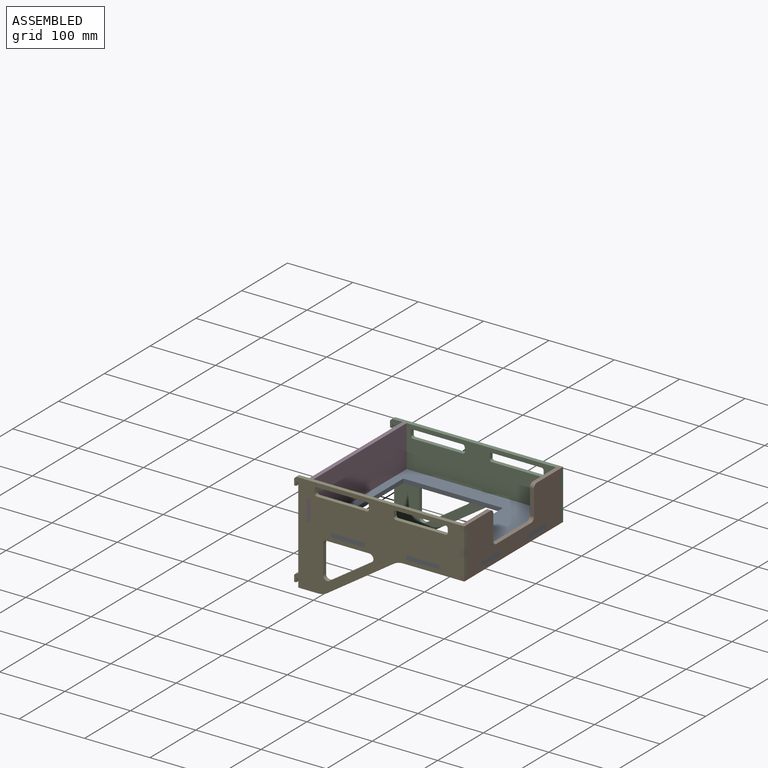
[diagram: assembled view]
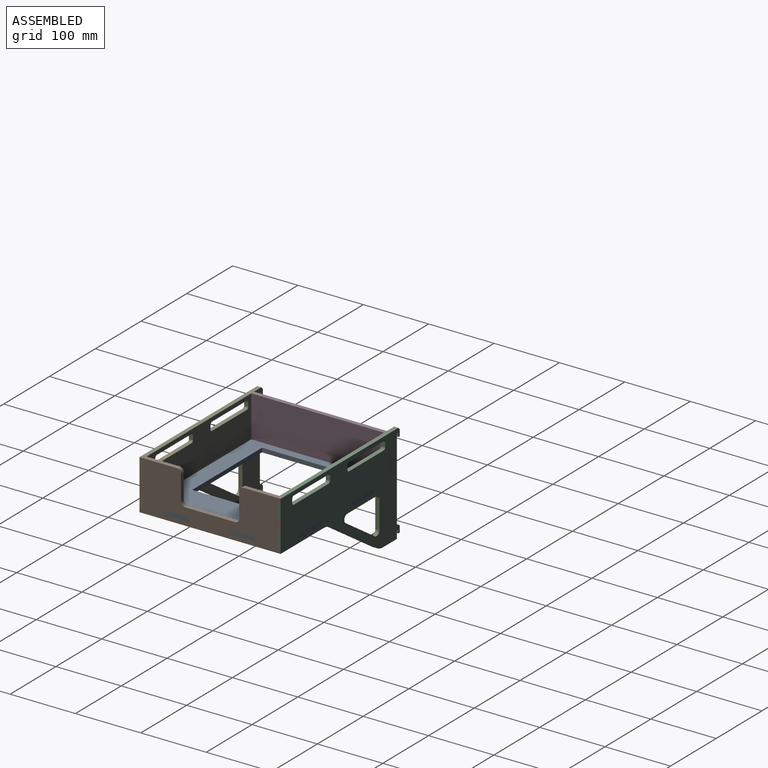
[diagram: assembled view, second angle]
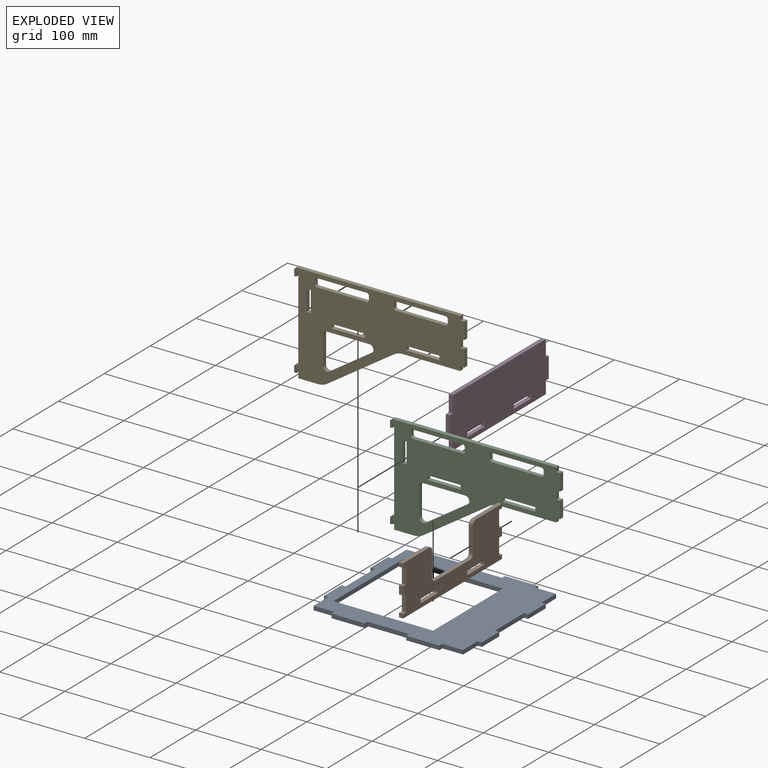
[diagram: exploded view]
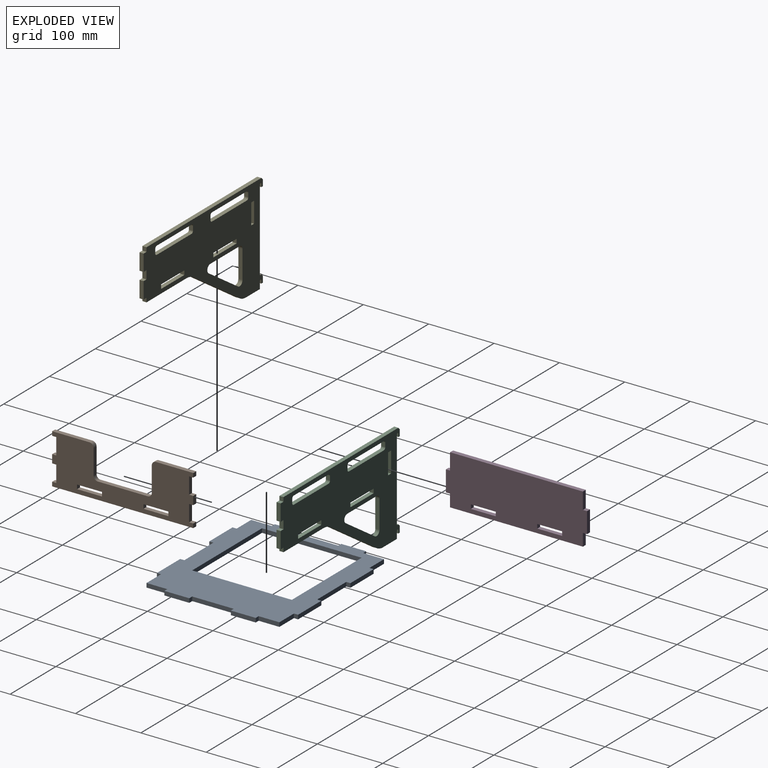
[diagram: exploded view, second angle]
ASSEMBLY  parts=5 mates=12
PART A: 42 faces, bbox 241.3x215.9x6.4 mm
  f0: plane 63.5x6.35mm, normal (0,-1,0), area 403.2mm2, adj f16,f17,f36,f39
  f1: plane 31.75x6.35mm, normal (0,-1,0), area 201.6mm2, adj f4,f16,f17,f38
  f2: plane 63.5x6.35mm, normal (-1,0,0), area 403.2mm2, adj f16,f17,f31,f35
  f3: plane 31.75x6.35mm, normal (-1,0,0), area 201.6mm2, adj f9,f16,f17,f30
  f4: plane 31.75x6.35mm, normal (1,0,0), area 201.6mm2, adj f1,f16,f17,f27
  f5: plane 63.5x6.35mm, normal (1,0,0), area 403.2mm2, adj f16,f17,f24,f29
  f6: plane 31.75x6.35mm, normal (0,1,0), area 201.6mm2, adj f10,f16,f17,f21
  f7: plane 63.5x6.35mm, normal (0,1,0), area 403.2mm2, adj f16,f17,f18,f23
  f8: plane 31.75x6.35mm, normal (-1,0,0), area 201.6mm2, adj f15,f16,f17,f33
  f9: plane 31.75x6.35mm, normal (0,-1,0), area 201.6mm2, adj f3,f16,f17,f40
  f10: plane 31.75x6.35mm, normal (1,0,0), area 201.6mm2, adj f6,f16,f17,f26
  f11: plane 152.4x6.35mm, normal (-1,0,0), area 967.7mm2, adj f12,f14,f16,f17
  f12: plane 152.4x6.35mm, normal (0,1,0), area 967.7mm2, adj f11,f13,f16,f17
  f13: plane 152.4x6.35mm, normal (1,0,0), area 967.7mm2, adj f12,f14,f16,f17
  f14: plane 152.4x6.35mm, normal (0,-1,0), area 967.7mm2, adj f11,f13,f16,f17
  f15: plane 31.75x6.35mm, normal (0,1,0), area 201.6mm2, adj f8,f16,f17,f20
  f16: plane 241.3x215.9mm, normal (0,0,1), area 25483.8mm2, adj f0,f1,f2,f3,f4,f5,f6,f7
  f17: plane 241.3x215.9mm, normal (0,0,-1), area 25483.8mm2, adj f0,f1,f2,f3,f4,f5,f6,f7
  f18: plane 6.35x6.35mm, normal (1,0,0), area 40.3mm2, adj f7,f16,f17,f19
  f19: plane 50.8x6.35mm, normal (0,1,0), area 322.6mm2, adj f16,f17,f18,f20
  f20: plane 6.35x6.35mm, normal (-1,0,0), area 40.3mm2, adj f15,f16,f17,f19
  f21: plane 6.35x6.35mm, normal (1,0,0), area 40.3mm2, adj f6,f16,f17,f22
  f22: plane 50.8x6.35mm, normal (0,1,0), area 322.6mm2, adj f16,f17,f21,f23
  f23: plane 6.35x6.35mm, normal (-1,0,0), area 40.3mm2, adj f7,f16,f17,f22
  f24: plane 6.35x6.35mm, normal (0,-1,0), area 40.3mm2, adj f5,f16,f17,f25
  f25: plane 38.1x6.35mm, normal (1,0,0), area 241.9mm2, adj f16,f17,f24,f26
  f26: plane 6.35x6.35mm, normal (0,1,0), area 40.3mm2, adj f10,f16,f17,f25
  f27: plane 6.35x6.35mm, normal (0,-1,0), area 40.3mm2, adj f4,f16,f17,f28
  f28: plane 38.1x6.35mm, normal (1,0,0), area 241.9mm2, adj f16,f17,f27,f29
  f29: plane 6.35x6.35mm, normal (0,1,0), area 40.3mm2, adj f5,f16,f17,f28
  f30: plane 6.35x6.35mm, normal (0,-1,0), area 40.3mm2, adj f3,f16,f17,f32
  f31: plane 6.35x6.35mm, normal (0,1,0), area 40.3mm2, adj f2,f16,f17,f32
  f32: plane 38.1x6.35mm, normal (-1,0,0), area 241.9mm2, adj f16,f17,f30,f31
  f33: plane 6.35x6.35mm, normal (0,1,0), area 40.3mm2, adj f8,f16,f17,f34
  f34: plane 38.1x6.35mm, normal (-1,0,0), area 241.9mm2, adj f16,f17,f33,f35
  f35: plane 6.35x6.35mm, normal (0,-1,0), area 40.3mm2, adj f2,f16,f17,f34
  f36: plane 6.35x6.35mm, normal (-1,0,0), area 40.3mm2, adj f0,f16,f17,f37
  f37: plane 50.8x6.35mm, normal (0,-1,0), area 322.6mm2, adj f16,f17,f36,f38
  f38: plane 6.35x6.35mm, normal (1,0,0), area 40.3mm2, adj f1,f16,f17,f37
  f39: plane 6.35x6.35mm, normal (1,0,0), area 40.3mm2, adj f0,f16,f17,f41
  f40: plane 6.35x6.35mm, normal (-1,0,0), area 40.3mm2, adj f9,f16,f17,f41
  f41: plane 50.8x6.35mm, normal (0,-1,0), area 322.6mm2, adj f16,f17,f39,f40
PART B: 38 faces, bbox 6.4x215.9x76.2 mm
  f0: plane 6.35x6.35mm, normal (0,1,0), area 40.3mm2, adj f1,f31,f32,f33
  f1: plane 38.1x6.35mm, normal (0,0,-1), area 241.9mm2, adj f0,f2,f32,f33
  f2: plane 6.35x6.35mm, normal (0,-1,0), area 40.3mm2, adj f1,f31,f32,f33
  f3: plane 6.35x6.35mm, normal (0,-1,0), area 40.3mm2, adj f4,f29,f32,f33
  f4: plane 38.1x6.35mm, normal (0,0,1), area 241.9mm2, adj f3,f5,f32,f33
  f5: plane 6.35x6.35mm, normal (0,1,0), area 40.3mm2, adj f4,f29,f32,f33
  f6: plane 6.35x6.35mm, normal (0,1,0), area 40.3mm2, adj f7,f30,f32,f33
  f7: plane 6.35x6.35mm, normal (0,0,1), area 40.3mm2, adj f6,f8,f32,f33
  f8: plane 25.4x6.35mm, normal (0,1,0), area 161.3mm2, adj f7,f9,f32,f33
  f9: plane 6.35x6.35mm, normal (0,0,-1), area 40.3mm2, adj f8,f10,f32,f33
  f10: plane 12.7x6.35mm, normal (0,1,0), area 80.6mm2, adj f9,f11,f32,f33
  f11: plane 6.35x6.35mm, normal (0,0,1), area 40.3mm2, adj f10,f12,f32,f33
  f12: plane 25.4x6.35mm, normal (0,1,0), area 161.3mm2, adj f11,f13,f32,f33
  f13: plane 6.35x6.35mm, normal (0,0,-1), area 40.3mm2, adj f12,f14,f32,f33
  f14: plane 6.35x6.35mm, normal (0,1,0), area 40.3mm2, adj f13,f15,f32,f33
  f15: plane 57.15x6.35mm, normal (0,0,1), area 362.9mm2, adj f14,f32,f33,f34
  f16: plane 38.1x6.35mm, normal (0,-1,0), area 241.9mm2, adj f32,f33,f34,f35
  f17: plane 76.2x6.35mm, normal (0,0,1), area 483.9mm2, adj f32,f33,f35,f36
  f18: plane 38.1x6.35mm, normal (0,1,0), area 241.9mm2, adj f32,f33,f36,f37
  f19: plane 57.15x6.35mm, normal (0,0,1), area 362.9mm2, adj f20,f32,f33,f37
  f20: plane 6.35x6.35mm, normal (0,-1,0), area 40.3mm2, adj f19,f21,f32,f33
  f21: plane 6.35x6.35mm, normal (0,0,-1), area 40.3mm2, adj f20,f22,f32,f33
  f22: plane 25.4x6.35mm, normal (0,-1,0), area 161.3mm2, adj f21,f23,f32,f33
  f23: plane 6.35x6.35mm, normal (0,0,1), area 40.3mm2, adj f22,f24,f32,f33
  f24: plane 12.7x6.35mm, normal (0,-1,0), area 80.6mm2, adj f23,f25,f32,f33
  f25: plane 6.35x6.35mm, normal (0,0,-1), area 40.3mm2, adj f24,f26,f32,f33
  f26: plane 25.4x6.35mm, normal (0,-1,0), area 161.3mm2, adj f25,f27,f32,f33
  f27: plane 6.35x6.35mm, normal (0,0,1), area 40.3mm2, adj f26,f28,f32,f33
  f28: plane 6.35x6.35mm, normal (0,-1,0), area 40.3mm2, adj f27,f30,f32,f33
  f29: plane 38.1x6.35mm, normal (0,0,-1), area 241.9mm2, adj f3,f5,f32,f33
  f30: plane 215.9x6.35mm, normal (0,0,-1), area 1371mm2, adj f6,f28,f32,f33
  f31: plane 38.1x6.35mm, normal (0,0,1), area 241.9mm2, adj f0,f2,f32,f33
  f32: plane 215.9x76.2mm, normal (1,0,0), area 10806.4mm2, adj f0,f1,f2,f3,f4,f5,f6,f7
  f33: plane 215.9x76.2mm, normal (-1,0,0), area 10806.4mm2, adj f0,f1,f2,f3,f4,f5,f6,f7
  f34: cylinder r=6.35mm len=6.35mm, axis (1,0,0), area 63.3mm2, adj f15,f16,f32,f33
  f35: cylinder r=6.35mm len=6.35mm, axis (-1,0,0), area 63.3mm2, adj f16,f17,f32,f33
  f36: cylinder r=6.35mm len=6.35mm, axis (1,0,0), area 63.3mm2, adj f17,f18,f32,f33
  f37: cylinder r=6.35mm len=6.35mm, axis (-1,0,0), area 63.3mm2, adj f18,f19,f32,f33
PART C: 64 faces, bbox 260.4x6.4x152.4 mm
  f0: plane 11.11x6.35mm, normal (-1,0,0), area 70.6mm2, adj f16,f38,f39,f60
  f1: plane 125.41x6.35mm, normal (-1,0,0), area 796.4mm2, adj f38,f39,f56,f61
  f2: plane 6.35x6.35mm, normal (-1,0,0), area 40.3mm2, adj f38,f39,f49,f52
  f3: plane 76.2x6.35mm, normal (0,0,1), area 483.9mm2, adj f38,f39,f49,f50
  f4: plane 6.35x6.35mm, normal (1,0,0), area 40.3mm2, adj f38,f39,f50,f51
  f5: plane 6.35x6.35mm, normal (-1,0,0), area 40.3mm2, adj f6,f31,f38,f39
  f6: plane 50.8x6.35mm, normal (0,0,1), area 322.6mm2, adj f5,f7,f38,f39
  f7: plane 6.35x6.35mm, normal (1,0,0), area 40.3mm2, adj f6,f31,f38,f39
  f8: plane 25.4x6.35mm, normal (1,0,0), area 161.3mm2, adj f9,f32,f38,f39
  f9: plane 6.35x6.35mm, normal (0,0,1), area 40.3mm2, adj f8,f10,f38,f39
  f10: plane 12.7x6.35mm, normal (1,0,0), area 80.6mm2, adj f9,f11,f38,f39
  f11: plane 6.35x6.35mm, normal (0,0,-1), area 40.3mm2, adj f10,f12,f38,f39
  f12: plane 25.4x6.35mm, normal (1,0,0), area 161.3mm2, adj f11,f13,f38,f39
  f13: plane 6.35x6.35mm, normal (0,0,1), area 40.3mm2, adj f12,f14,f38,f39
  f14: plane 6.35x6.35mm, normal (1,0,0), area 40.3mm2, adj f13,f15,f38,f39
  f15: plane 250.83x6.35mm, normal (0,0,1), area 1592.7mm2, adj f14,f38,f39,f63
  f16: plane 30.41x6.35mm, normal (0,0,-1), area 193.1mm2, adj f0,f38,f39,f43
  f17: plane 101.5x67.67mm, normal (0.55,0,-0.83), area 774.6mm2, adj f38,f39,f43,f44
  f18: plane 87.56x6.35mm, normal (0,0,-1), area 556mm2, adj f19,f38,f39,f44
  f19: plane 6.35x6.35mm, normal (1,0,0), area 40.3mm2, adj f18,f32,f38,f39
  f20: plane 50.8x6.35mm, normal (0,0,1), area 322.6mm2, adj f21,f33,f38,f39
  f21: plane 6.35x6.35mm, normal (1,0,0), area 40.3mm2, adj f20,f22,f38,f39
  f22: plane 50.8x6.35mm, normal (0,0,-1), area 322.6mm2, adj f21,f33,f38,f39
  f23: plane 42.72x6.35mm, normal (1,0,0), area 271.3mm2, adj f38,f39,f40,f42
  f24: plane 64.08x6.35mm, normal (0,0,-1), area 406.9mm2, adj f38,f39,f40,f41
  f25: plane 76.2x6.35mm, normal (0,0,1), area 483.9mm2, adj f38,f39,f45,f48
  f26: plane 6.35x6.35mm, normal (1,0,0), area 40.3mm2, adj f38,f39,f45,f46
  f27: plane 76.2x6.35mm, normal (0,0,-1), area 483.9mm2, adj f38,f39,f46,f47
  f28: plane 6.35x6.35mm, normal (0,0,1), area 40.3mm2, adj f29,f36,f38,f39
  f29: plane 31.75x6.35mm, normal (1,0,0), area 201.6mm2, adj f28,f30,f38,f39
  f30: plane 6.35x6.35mm, normal (0,0,-1), area 40.3mm2, adj f29,f36,f38,f39
  f31: plane 50.8x6.35mm, normal (0,0,-1), area 322.6mm2, adj f5,f7,f38,f39
  f32: plane 6.35x6.35mm, normal (0,0,-1), area 40.3mm2, adj f8,f19,f38,f39
  f33: plane 6.35x6.35mm, normal (-1,0,0), area 40.3mm2, adj f20,f22,f38,f39
  f34: plane 64.08x42.72mm, normal (-0.55,0,0.83), area 489.1mm2, adj f38,f39,f41,f42
  f35: plane 6.35x6.35mm, normal (-1,0,0), area 40.3mm2, adj f38,f39,f47,f48
  f36: plane 31.75x6.35mm, normal (-1,0,0), area 201.6mm2, adj f28,f30,f38,f39
  f37: plane 76.2x6.35mm, normal (0,0,-1), area 483.9mm2, adj f38,f39,f51,f52
  f38: plane 260.35x152.4mm, normal (0,-1,0), area 20975.6mm2, adj f0,f1,f2,f3,f4,f5,f6,f7
  f39: plane 260.35x152.4mm, normal (0,1,0), area 20975.6mm2, adj f0,f1,f2,f3,f4,f5,f6,f7
  f40: cylinder r=6.35mm len=6.35mm, axis (0,-1,0), area 63.3mm2, adj f23,f24,f38,f39
  f41: cylinder r=6.35mm len=11.63mm, axis (0,-1,0), area 103mm2, adj f24,f34,f38,f39
  f42: cylinder r=6.35mm len=9.87mm, axis (0,-1,0), area 87mm2, adj f23,f34,f38,f39
  f43: cylinder r=25.4mm len=14.09mm, axis (0,1,0), area 94.8mm2, adj f16,f17,f38,f39
  f44: cylinder r=25.4mm len=14.09mm, axis (0,-1,0), area 94.8mm2, adj f17,f18,f38,f39
  f45: cylinder r=3.17mm len=6.35mm, axis (0,-1,0), area 31.7mm2, adj f25,f26,f38,f39
  f46: cylinder r=3.17mm len=6.35mm, axis (0,1,0), area 31.7mm2, adj f26,f27,f38,f39
  f47: cylinder r=3.17mm len=6.35mm, axis (0,-1,0), area 31.7mm2, adj f27,f35,f38,f39
  f48: cylinder r=3.17mm len=6.35mm, axis (0,1,0), area 31.7mm2, adj f25,f35,f38,f39
  f49: cylinder r=3.17mm len=6.35mm, axis (0,-1,0), area 31.7mm2, adj f2,f3,f38,f39
  f50: cylinder r=3.17mm len=6.35mm, axis (0,1,0), area 31.7mm2, adj f3,f4,f38,f39
  f51: cylinder r=3.17mm len=6.35mm, axis (0,-1,0), area 31.7mm2, adj f4,f37,f38,f39
  f52: cylinder r=3.17mm len=6.35mm, axis (0,1,0), area 31.7mm2, adj f2,f37,f38,f39
  f53: plane 6.35x4.76mm, normal (1,0,0), area 30.2mm2, adj f38,f39,f55,f61
  f54: plane 9.53x6.35mm, normal (-1,0,0), area 60.5mm2, adj f38,f39,f55,f63
  f55: plane 6.35x3.18mm, normal (0,0,-1), area 20.2mm2, adj f38,f39,f53,f54
  f56: plane 6.35x3.18mm, normal (0,0,1), area 20.2mm2, adj f1,f38,f39,f62
  f57: plane 9.53x6.35mm, normal (-1,0,0), area 60.5mm2, adj f38,f39,f58,f62
  f58: plane 6.35x3.18mm, normal (0,0,-1), area 20.2mm2, adj f38,f39,f57,f59
  f59: plane 6.35x4.76mm, normal (1,0,0), area 30.2mm2, adj f38,f39,f58,f60
  f60: cylinder r=1.59mm len=6.35mm, axis (0,1,0), area 31.7mm2, adj f0,f38,f39,f59
  f61: cylinder r=1.59mm len=6.35mm, axis (0,1,0), area 31.7mm2, adj f1,f38,f39,f53
  f62: plane 6.35x3.18mm, normal (-0.71,0,0.71), area 28.5mm2, adj f38,f39,f56,f57
  f63: plane 6.35x3.18mm, normal (-0.71,0,0.71), area 28.5mm2, adj f15,f38,f39,f54
PART D: 22 faces, bbox 6.4x215.9x76.2 mm
  f0: plane 6.35x6.35mm, normal (0,-1,0), area 40.3mm2, adj f1,f19,f20,f21
  f1: plane 38.1x6.35mm, normal (0,0,1), area 241.9mm2, adj f0,f2,f20,f21
  f2: plane 6.35x6.35mm, normal (0,1,0), area 40.3mm2, adj f1,f19,f20,f21
  f3: plane 19.05x6.35mm, normal (0,-1,0), area 121mm2, adj f4,f17,f20,f21
  f4: plane 203.2x6.35mm, normal (0,0,-1), area 1290.3mm2, adj f3,f5,f20,f21
  f5: plane 19.05x6.35mm, normal (0,1,0), area 121mm2, adj f4,f6,f20,f21
  f6: plane 6.35x6.35mm, normal (0,0,-1), area 40.3mm2, adj f5,f7,f20,f21
  f7: plane 31.75x6.35mm, normal (0,1,0), area 201.6mm2, adj f6,f8,f20,f21
  f8: plane 6.35x6.35mm, normal (0,0,1), area 40.3mm2, adj f7,f9,f20,f21
  f9: plane 25.4x6.35mm, normal (0,1,0), area 161.3mm2, adj f8,f10,f20,f21
  f10: plane 203.2x6.35mm, normal (0,0,1), area 1290.3mm2, adj f9,f11,f20,f21
  f11: plane 25.4x6.35mm, normal (0,-1,0), area 161.3mm2, adj f10,f12,f20,f21
  f12: plane 6.35x6.35mm, normal (0,0,1), area 40.3mm2, adj f11,f13,f20,f21
  f13: plane 31.75x6.35mm, normal (0,-1,0), area 201.6mm2, adj f12,f17,f20,f21
  f14: plane 6.35x6.35mm, normal (0,1,0), area 40.3mm2, adj f15,f18,f20,f21
  f15: plane 38.1x6.35mm, normal (0,0,-1), area 241.9mm2, adj f14,f16,f20,f21
  f16: plane 6.35x6.35mm, normal (0,-1,0), area 40.3mm2, adj f15,f18,f20,f21
  f17: plane 6.35x6.35mm, normal (0,0,-1), area 40.3mm2, adj f3,f13,f20,f21
  f18: plane 38.1x6.35mm, normal (0,0,1), area 241.9mm2, adj f14,f16,f20,f21
  f19: plane 38.1x6.35mm, normal (0,0,-1), area 241.9mm2, adj f0,f2,f20,f21
  f20: plane 215.9x76.2mm, normal (1,0,0), area 15403.2mm2, adj f0,f1,f2,f3,f4,f5,f6,f7
  f21: plane 215.9x76.2mm, normal (-1,0,0), area 15403.2mm2, adj f0,f1,f2,f3,f4,f5,f6,f7
PART E: same geometry as C
PLACE A t=(13.17,-32.7,11.08)mm fixed
PLACE B t=(152.87,-32.7,42.83)mm
PLACE C t=(32.22,75.25,4.73)mm
PLACE D t=(-82.08,-32.7,42.83)mm
PLACE E t=(32.22,-134.3,4.73)mm
MATE parallel E.f15 <-> B.f19  axis (0,0,1) through (27.46,-137.47,80.93)mm
MATE planar E.f22 <-> A.f16  axis (0,0,-1) through (95.72,-137.47,17.43)mm
MATE planar A.f16 <-> B.f29  axis (0,0,1) through (89.37,-32.7,17.43)mm
MATE fastened D.f0 <-> A.f31  axis (0,-1,0) through (-82.08,-64.45,17.43)mm
MATE parallel B.f19 <-> E.f15  axis (0,0,1) through (156.04,-112.07,80.93)mm
MATE parallel B.f32 <-> E.f12  axis (1,0,0) through (159.22,-134.3,61.88)mm
MATE parallel E.f14 <-> B.f33  axis (1,0,0) through (152.87,-137.47,77.75)mm
MATE fastened A.f23 <-> C.f21  axis (1,0,0) through (70.32,75.25,17.43)mm
MATE fastened B.f3 <-> A.f29  axis (0,-1,0) through (159.22,-64.45,17.43)mm
MATE planar A.f38 <-> E.f33  axis (1,0,0) through (121.12,-137.47,14.25)mm
MATE planar E.f39 <-> A.f0  axis (0,1,0) through (13.54,-134.3,24.76)mm
MATE planar A.f28 <-> B.f32  axis (1,0,0) through (159.22,-83.5,14.25)mm
